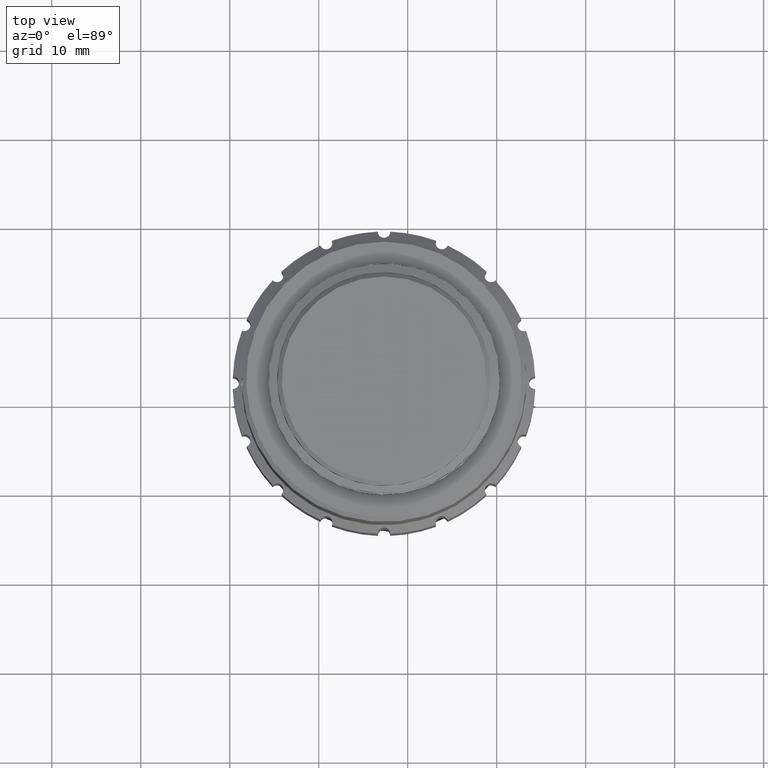
[diagram: clean part render]
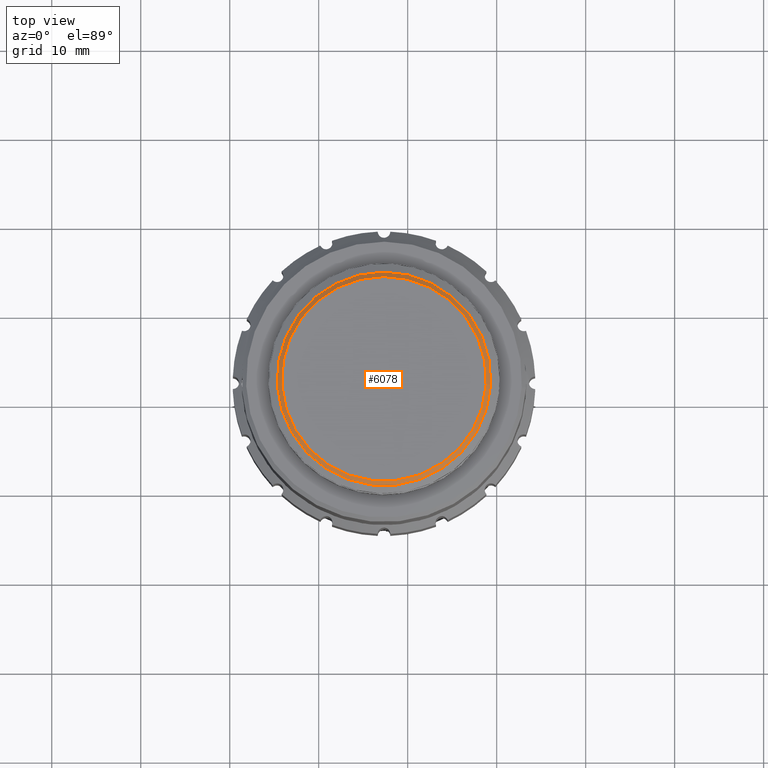
[diagram: same view with one face highlighted and labeled with its STEP entity id]
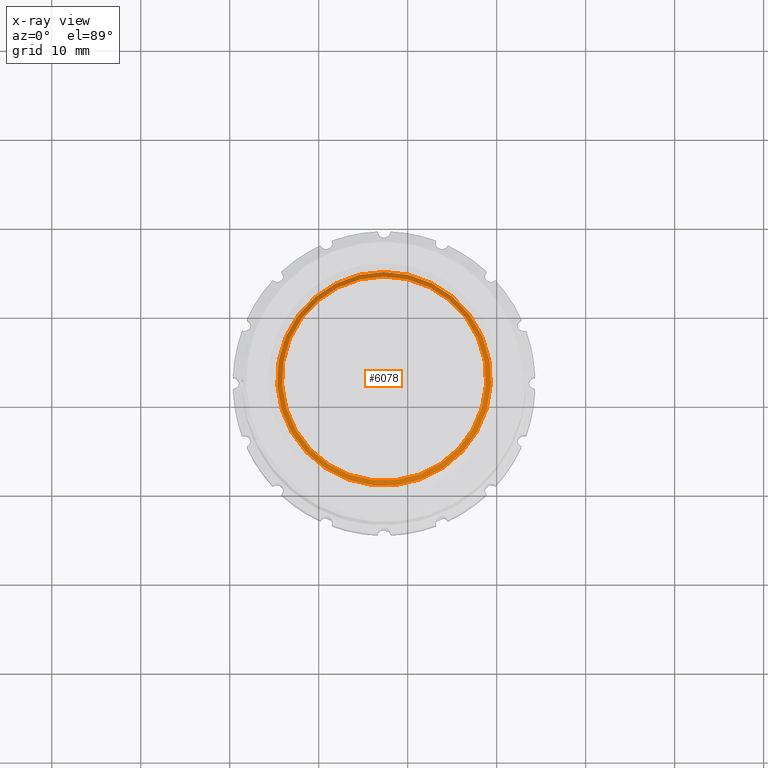
[diagram: x-ray of the same camera — body ghosted, the highlighted face saturated]
A machine part, top view. The second image highlights one B-rep face of the part: STEP entity #6078.
The next image is the same camera in x-ray: the body ghosted, the highlighted face saturated — about 0% of this face is hidden behind the body in this view.
In plain terms, the highlighted conical surface has half-angle 45 deg.
Its self-contained STEP definition (entity closure, byte-faithful):
#507 = VERTEX_POINT ( 'NONE', #7721 ) ;
#1314 = DIRECTION ( 'NONE',  ( 0.9984986589527604650, -0.05477616333350729394, 0.000000000000000000 ) ) ;
#1356 = CONICAL_SURFACE ( 'NONE', #15101, 11.50000000000001599, 0.7853981633974482790 ) ;
#1821 = CARTESIAN_POINT ( 'NONE',  ( -122.6630341068842824, 22.01530283243863906, 32.09225607790694568 ) ) ;
#3075 = CIRCLE ( 'NONE', #12630, 11.50000000000000178 ) ;
#5343 = CARTESIAN_POINT ( 'NONE',  ( -122.6630341068842824, 22.01530283243863906, 31.59225607790694568 ) ) ;
#6078 = ADVANCED_FACE ( 'NONE', ( #15786, #10244 ), #1356, .T. ) ;
#6844 = EDGE_CURVE ( 'NONE', #7994, #7994, #16332, .T. ) ;
#7721 = CARTESIAN_POINT ( 'NONE',  ( -111.1802995289275344, 21.38537695410330386, 32.09225607790694568 ) ) ;
#7994 = VERTEX_POINT ( 'NONE', #14918 ) ;
#8069 = ORIENTED_EDGE ( 'NONE', *, *, #9443, .F. ) ;
#8095 = EDGE_LOOP ( 'NONE', ( #17728 ) ) ;
#8259 = EDGE_LOOP ( 'NONE', ( #8069 ) ) ;
#9316 = CARTESIAN_POINT ( 'NONE',  ( -122.6630341068842824, 22.01530283243863906, 32.09225607790694568 ) ) ;
#9443 = EDGE_CURVE ( 'NONE', #507, #507, #3075, .T. ) ;
#10244 = FACE_OUTER_BOUND ( 'NONE', #8095, .T. ) ;
#12431 = AXIS2_PLACEMENT_3D ( 'NONE', #5343, #18256, #1314 ) ;
#12630 = AXIS2_PLACEMENT_3D ( 'NONE', #9316, #13365, #17748 ) ;
#13159 = DIRECTION ( 'NONE',  ( -0.9984986589527603540, 0.05477616333350731476, 0.000000000000000000 ) ) ;
#13365 = DIRECTION ( 'NONE',  ( 0.000000000000000000, 0.000000000000000000, 1.000000000000000000 ) ) ;
#14918 = CARTESIAN_POINT ( 'NONE',  ( -110.6810501994511498, 21.35798887243655031, 31.59225607790694568 ) ) ;
#15101 = AXIS2_PLACEMENT_3D ( 'NONE', #1821, #17373, #13159 ) ;
#15786 = FACE_BOUND ( 'NONE', #8259, .T. ) ;
#16332 = CIRCLE ( 'NONE', #12431, 12.00000000000000533 ) ;
#17373 = DIRECTION ( 'NONE',  ( 0.000000000000000000, 0.000000000000000000, -1.000000000000000000 ) ) ;
#17728 = ORIENTED_EDGE ( 'NONE', *, *, #6844, .F. ) ;
#17748 = DIRECTION ( 'NONE',  ( 0.9984986589527603540, -0.05477616333350738415, 0.000000000000000000 ) ) ;
#18256 = DIRECTION ( 'NONE',  ( -0.000000000000000000, -0.000000000000000000, -1.000000000000000000 ) ) ;